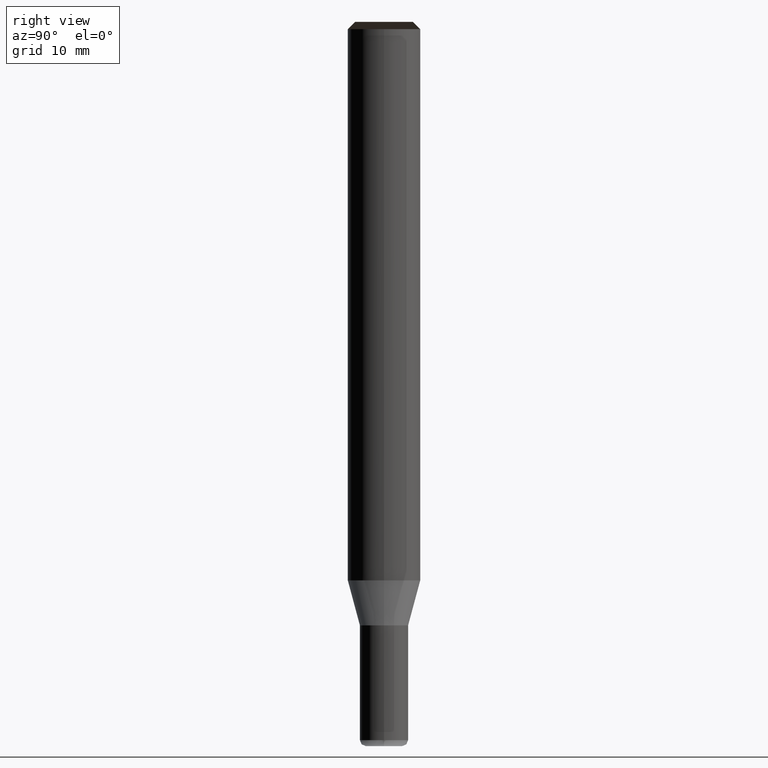
[diagram: clean part render]
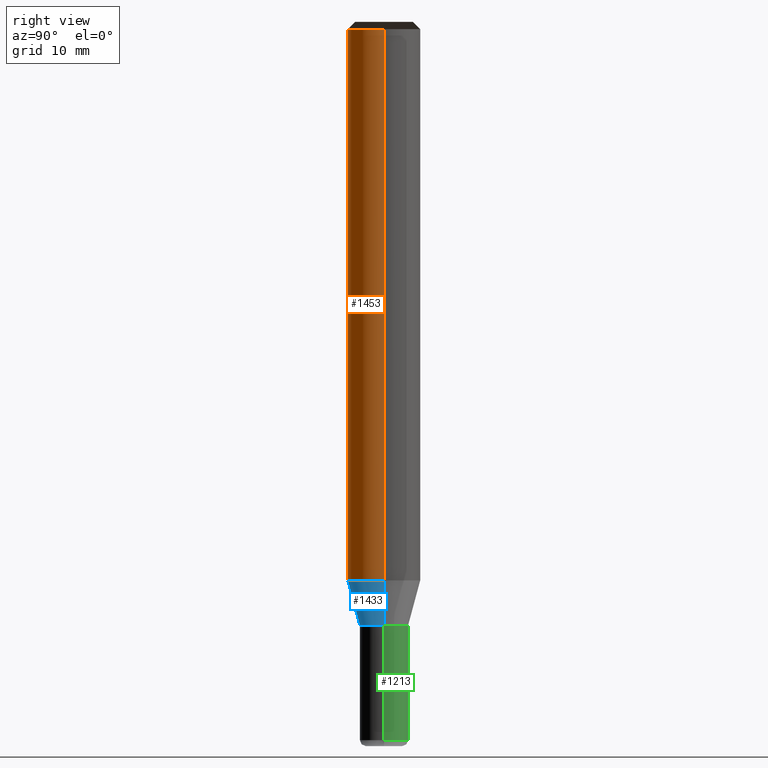
[diagram: same view with three faces highlighted in distinct colors, each labeled with its STEP entity id]
A machine part, right view with three faces highlighted in distinct colors.
Their STEP definitions:

[orange] entity #1453 — the highlighted face is a freeform B-spline surface patch.
#1124=CARTESIAN_POINT('',(3.0,0.0,0.0));
#1128=CARTESIAN_POINT('',(-3.0,0.0,0.0));
#1129=CARTESIAN_POINT('',(3.0,0.0,45.667949192431));
#1133=CARTESIAN_POINT('',(-3.0,0.0,45.667949192431));
#1140=CARTESIAN_POINT('',(-3.0,-3.0,0.0));
#1141=CARTESIAN_POINT('',(0.0,-3.0,0.0));
#1142=CARTESIAN_POINT('',(3.0,-3.0,0.0));
#1143=CARTESIAN_POINT('',(-3.0,-3.0,45.667949192431));
#1144=CARTESIAN_POINT('',(0.0,-3.0,45.667949192431));
#1145=CARTESIAN_POINT('',(3.0,-3.0,45.667949192431));
#1434=(
BOUNDED_SURFACE()
B_SPLINE_SURFACE(1,2,(
(#1128,#1140,#1141,#1142,#1124),
(#1133,#1143,#1144,#1145,#1129)
), .UNSPECIFIED.,.F.,.F.,.F.)
B_SPLINE_SURFACE_WITH_KNOTS((2,2),(3,2,3),(
0.0,1.0),(
0.0,0.5,1.0), .UNSPECIFIED.)
GEOMETRIC_REPRESENTATION_ITEM()
RATIONAL_B_SPLINE_SURFACE(((1.0,0.707106781187,1.0,0.707106781187,1.0),
(1.0,0.707106781187,1.0,0.707106781187,1.0)
))
REPRESENTATION_ITEM('')
SURFACE()
);
#1435=(
BOUNDED_CURVE()
B_SPLINE_CURVE(1,(#1133,#1128),.UNSPECIFIED.,.F.,.F.)
B_SPLINE_CURVE_WITH_KNOTS((2,2),
(0.0,1.0),.UNSPECIFIED.)
CURVE()
GEOMETRIC_REPRESENTATION_ITEM()
RATIONAL_B_SPLINE_CURVE((1.0,1.0))
REPRESENTATION_ITEM('')
);
#1436=(
BOUNDED_CURVE()
B_SPLINE_CURVE(2,(#1128,#1140,#1141,#1142,#1124),.UNSPECIFIED.,.F.,.F.)
B_SPLINE_CURVE_WITH_KNOTS((3,2,3),
(0.0,0.5,1.0),.UNSPECIFIED.)
CURVE()
GEOMETRIC_REPRESENTATION_ITEM()
RATIONAL_B_SPLINE_CURVE((1.0,0.707106781187,1.0,0.707106781187,1.0))
REPRESENTATION_ITEM('')
);
#1437=(
BOUNDED_CURVE()
B_SPLINE_CURVE(1,(#1124,#1129),.UNSPECIFIED.,.F.,.F.)
B_SPLINE_CURVE_WITH_KNOTS((2,2),
(0.0,1.0),.UNSPECIFIED.)
CURVE()
GEOMETRIC_REPRESENTATION_ITEM()
RATIONAL_B_SPLINE_CURVE((1.0,1.0))
REPRESENTATION_ITEM('')
);
#1438=(
BOUNDED_CURVE()
B_SPLINE_CURVE(2,(#1129,#1145,#1144,#1143,#1133),.UNSPECIFIED.,.F.,.F.)
B_SPLINE_CURVE_WITH_KNOTS((3,2,3),
(0.0,0.5,1.0),.UNSPECIFIED.)
CURVE()
GEOMETRIC_REPRESENTATION_ITEM()
RATIONAL_B_SPLINE_CURVE((1.0,0.707106781187,1.0,0.707106781187,1.0))
REPRESENTATION_ITEM('')
);
#1439=VERTEX_POINT('',#1124);
#1440=VERTEX_POINT('',#1128);
#1441=VERTEX_POINT('',#1129);
#1442=VERTEX_POINT('',#1133);
#1443=EDGE_CURVE('',#1442,#1440,#1435,.T.);
#1444=EDGE_CURVE('',#1440,#1439,#1436,.T.);
#1445=EDGE_CURVE('',#1439,#1441,#1437,.T.);
#1446=EDGE_CURVE('',#1441,#1442,#1438,.T.);
#1447=ORIENTED_EDGE('',*,*,#1443,.T.);
#1448=ORIENTED_EDGE('',*,*,#1444,.T.);
#1449=ORIENTED_EDGE('',*,*,#1445,.T.);
#1450=ORIENTED_EDGE('',*,*,#1446,.T.);
#1451=EDGE_LOOP('',(#1447,#1448,#1449,#1450));
#1452=FACE_OUTER_BOUND('',#1451,.T.);
#1453=ADVANCED_FACE('',(#1452),#1434,.T.);

[blue] entity #1433 — the highlighted face is a freeform B-spline surface patch.
#1100=CARTESIAN_POINT('',(2.0,0.0,-3.732050807569));
#1104=CARTESIAN_POINT('',(-2.0,0.0,-3.732050807569));
#1121=CARTESIAN_POINT('',(-2.0,-2.0,-3.732050807569));
#1122=CARTESIAN_POINT('',(0.0,-2.0,-3.732050807569));
#1123=CARTESIAN_POINT('',(2.0,-2.0,-3.732050807569));
#1124=CARTESIAN_POINT('',(3.0,0.0,0.0));
#1128=CARTESIAN_POINT('',(-3.0,0.0,0.0));
#1140=CARTESIAN_POINT('',(-3.0,-3.0,0.0));
#1141=CARTESIAN_POINT('',(0.0,-3.0,0.0));
#1142=CARTESIAN_POINT('',(3.0,-3.0,0.0));
#1414=(
BOUNDED_SURFACE()
B_SPLINE_SURFACE(1,2,(
(#1104,#1121,#1122,#1123,#1100),
(#1128,#1140,#1141,#1142,#1124)
), .UNSPECIFIED.,.F.,.F.,.F.)
B_SPLINE_SURFACE_WITH_KNOTS((2,2),(3,2,3),(
0.0,1.0),(
0.0,0.5,1.0), .UNSPECIFIED.)
GEOMETRIC_REPRESENTATION_ITEM()
RATIONAL_B_SPLINE_SURFACE(((1.0,0.707106781187,1.0,0.707106781187,1.0),
(1.0,0.707106781187,1.0,0.707106781187,1.0)
))
REPRESENTATION_ITEM('')
SURFACE()
);
#1415=(
BOUNDED_CURVE()
B_SPLINE_CURVE(1,(#1128,#1104),.UNSPECIFIED.,.F.,.F.)
B_SPLINE_CURVE_WITH_KNOTS((2,2),
(0.0,1.0),.UNSPECIFIED.)
CURVE()
GEOMETRIC_REPRESENTATION_ITEM()
RATIONAL_B_SPLINE_CURVE((1.0,1.0))
REPRESENTATION_ITEM('')
);
#1416=(
BOUNDED_CURVE()
B_SPLINE_CURVE(2,(#1104,#1121,#1122,#1123,#1100),.UNSPECIFIED.,.F.,.F.)
B_SPLINE_CURVE_WITH_KNOTS((3,2,3),
(0.0,0.5,1.0),.UNSPECIFIED.)
CURVE()
GEOMETRIC_REPRESENTATION_ITEM()
RATIONAL_B_SPLINE_CURVE((1.0,0.707106781187,1.0,0.707106781187,1.0))
REPRESENTATION_ITEM('')
);
#1417=(
BOUNDED_CURVE()
B_SPLINE_CURVE(1,(#1100,#1124),.UNSPECIFIED.,.F.,.F.)
B_SPLINE_CURVE_WITH_KNOTS((2,2),
(0.0,1.0),.UNSPECIFIED.)
CURVE()
GEOMETRIC_REPRESENTATION_ITEM()
RATIONAL_B_SPLINE_CURVE((1.0,1.0))
REPRESENTATION_ITEM('')
);
#1418=(
BOUNDED_CURVE()
B_SPLINE_CURVE(2,(#1124,#1142,#1141,#1140,#1128),.UNSPECIFIED.,.F.,.F.)
B_SPLINE_CURVE_WITH_KNOTS((3,2,3),
(0.0,0.5,1.0),.UNSPECIFIED.)
CURVE()
GEOMETRIC_REPRESENTATION_ITEM()
RATIONAL_B_SPLINE_CURVE((1.0,0.707106781187,1.0,0.707106781187,1.0))
REPRESENTATION_ITEM('')
);
#1419=VERTEX_POINT('',#1100);
#1420=VERTEX_POINT('',#1104);
#1421=VERTEX_POINT('',#1124);
#1422=VERTEX_POINT('',#1128);
#1423=EDGE_CURVE('',#1422,#1420,#1415,.T.);
#1424=EDGE_CURVE('',#1420,#1419,#1416,.T.);
#1425=EDGE_CURVE('',#1419,#1421,#1417,.T.);
#1426=EDGE_CURVE('',#1421,#1422,#1418,.T.);
#1427=ORIENTED_EDGE('',*,*,#1423,.T.);
#1428=ORIENTED_EDGE('',*,*,#1424,.T.);
#1429=ORIENTED_EDGE('',*,*,#1425,.T.);
#1430=ORIENTED_EDGE('',*,*,#1426,.T.);
#1431=EDGE_LOOP('',(#1427,#1428,#1429,#1430));
#1432=FACE_OUTER_BOUND('',#1431,.T.);
#1433=ADVANCED_FACE('',(#1432),#1414,.T.);

[green] entity #1213 — the highlighted face is a freeform B-spline surface patch.
#1095=CARTESIAN_POINT('',(2.0,0.0,-13.232050807569));
#1096=CARTESIAN_POINT('',(2.0,2.0,-13.232050807569));
#1097=CARTESIAN_POINT('',(0.0,2.0,-13.232050807569));
#1098=CARTESIAN_POINT('',(-2.0,2.0,-13.232050807569));
#1099=CARTESIAN_POINT('',(-2.0,0.0,-13.232050807569));
#1100=CARTESIAN_POINT('',(2.0,0.0,-3.732050807569));
#1101=CARTESIAN_POINT('',(2.0,2.0,-3.732050807569));
#1102=CARTESIAN_POINT('',(0.0,2.0,-3.732050807569));
#1103=CARTESIAN_POINT('',(-2.0,2.0,-3.732050807569));
#1104=CARTESIAN_POINT('',(-2.0,0.0,-3.732050807569));
#1194=(
BOUNDED_SURFACE()
B_SPLINE_SURFACE(1,2,(
(#1095,#1096,#1097,#1098,#1099),
(#1100,#1101,#1102,#1103,#1104)
), .UNSPECIFIED.,.F.,.F.,.F.)
B_SPLINE_SURFACE_WITH_KNOTS((2,2),(3,2,3),(
0.0,1.0),(
0.0,0.5,1.0), .UNSPECIFIED.)
GEOMETRIC_REPRESENTATION_ITEM()
RATIONAL_B_SPLINE_SURFACE(((1.0,0.707106781187,1.0,0.707106781187,1.0),
(1.0,0.707106781187,1.0,0.707106781187,1.0)
))
REPRESENTATION_ITEM('')
SURFACE()
);
#1195=(
BOUNDED_CURVE()
B_SPLINE_CURVE(2,(#1100,#1101,#1102,#1103,#1104),.UNSPECIFIED.,.F.,.F.)
B_SPLINE_CURVE_WITH_KNOTS((3,2,3),
(0.0,0.5,1.0),.UNSPECIFIED.)
CURVE()
GEOMETRIC_REPRESENTATION_ITEM()
RATIONAL_B_SPLINE_CURVE((1.0,0.707106781187,1.0,0.707106781187,1.0))
REPRESENTATION_ITEM('')
);
#1196=(
BOUNDED_CURVE()
B_SPLINE_CURVE(1,(#1104,#1099),.UNSPECIFIED.,.F.,.F.)
B_SPLINE_CURVE_WITH_KNOTS((2,2),
(0.0,1.0),.UNSPECIFIED.)
CURVE()
GEOMETRIC_REPRESENTATION_ITEM()
RATIONAL_B_SPLINE_CURVE((1.0,1.0))
REPRESENTATION_ITEM('')
);
#1197=(
BOUNDED_CURVE()
B_SPLINE_CURVE(2,(#1099,#1098,#1097,#1096,#1095),.UNSPECIFIED.,.F.,.F.)
B_SPLINE_CURVE_WITH_KNOTS((3,2,3),
(0.0,0.5,1.0),.UNSPECIFIED.)
CURVE()
GEOMETRIC_REPRESENTATION_ITEM()
RATIONAL_B_SPLINE_CURVE((1.0,0.707106781187,1.0,0.707106781187,1.0))
REPRESENTATION_ITEM('')
);
#1198=(
BOUNDED_CURVE()
B_SPLINE_CURVE(1,(#1095,#1100),.UNSPECIFIED.,.F.,.F.)
B_SPLINE_CURVE_WITH_KNOTS((2,2),
(0.0,1.0),.UNSPECIFIED.)
CURVE()
GEOMETRIC_REPRESENTATION_ITEM()
RATIONAL_B_SPLINE_CURVE((1.0,1.0))
REPRESENTATION_ITEM('')
);
#1199=VERTEX_POINT('',#1095);
#1200=VERTEX_POINT('',#1099);
#1201=VERTEX_POINT('',#1100);
#1202=VERTEX_POINT('',#1104);
#1203=EDGE_CURVE('',#1201,#1202,#1195,.T.);
#1204=EDGE_CURVE('',#1202,#1200,#1196,.T.);
#1205=EDGE_CURVE('',#1200,#1199,#1197,.T.);
#1206=EDGE_CURVE('',#1199,#1201,#1198,.T.);
#1207=ORIENTED_EDGE('',*,*,#1203,.T.);
#1208=ORIENTED_EDGE('',*,*,#1204,.T.);
#1209=ORIENTED_EDGE('',*,*,#1205,.T.);
#1210=ORIENTED_EDGE('',*,*,#1206,.T.);
#1211=EDGE_LOOP('',(#1207,#1208,#1209,#1210));
#1212=FACE_OUTER_BOUND('',#1211,.T.);
#1213=ADVANCED_FACE('',(#1212),#1194,.T.);